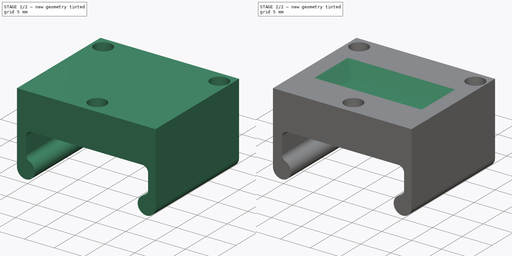
[diagram: build sequence overview — one tinted view per stage of 2, left to right]
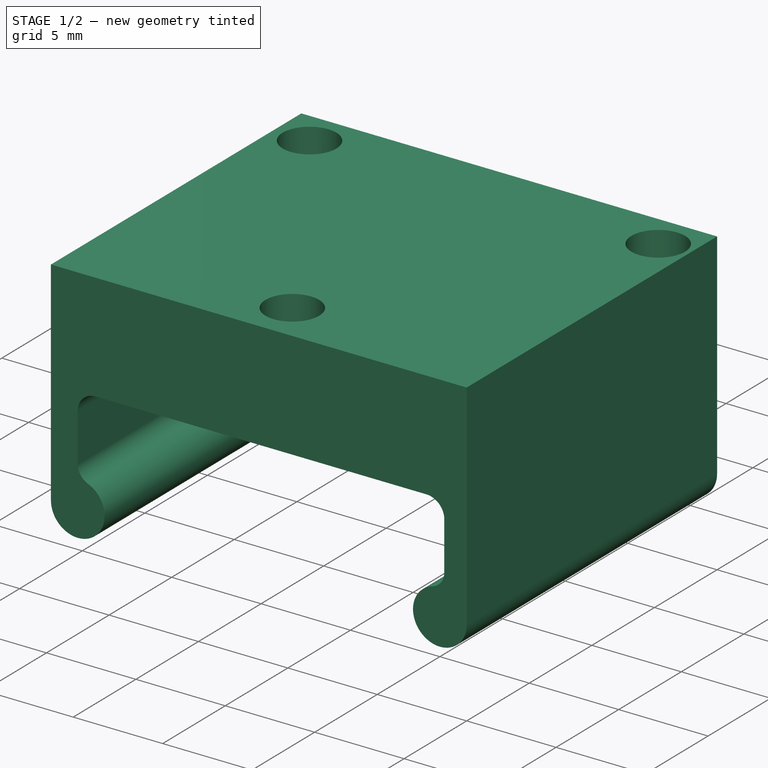
[diagram: stage 1 of 2 — iso view after this stage's code; geometry added in this stage tinted green]
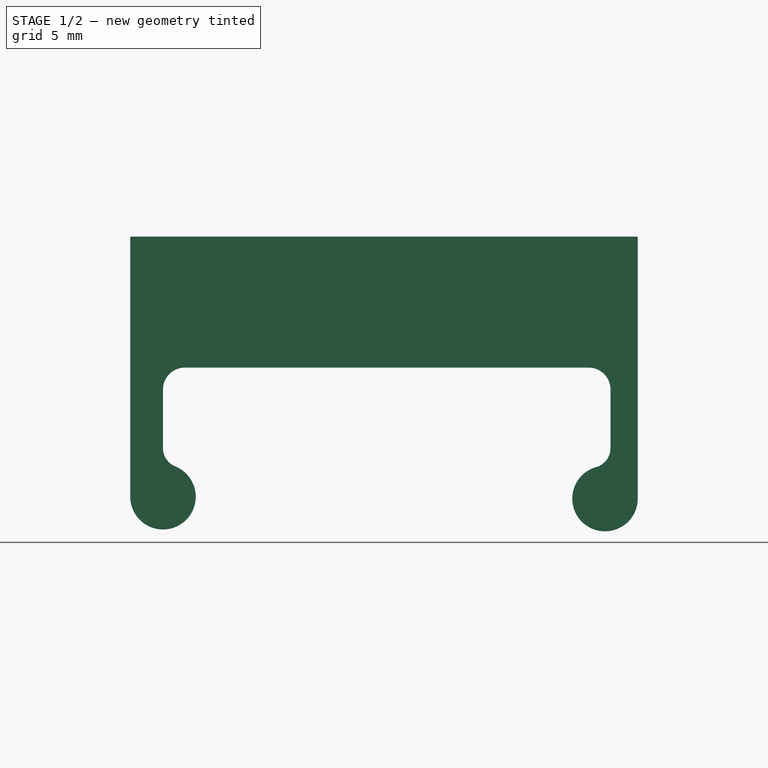
[diagram: stage 1 of 2 — front view after this stage's code; geometry added in this stage tinted green]
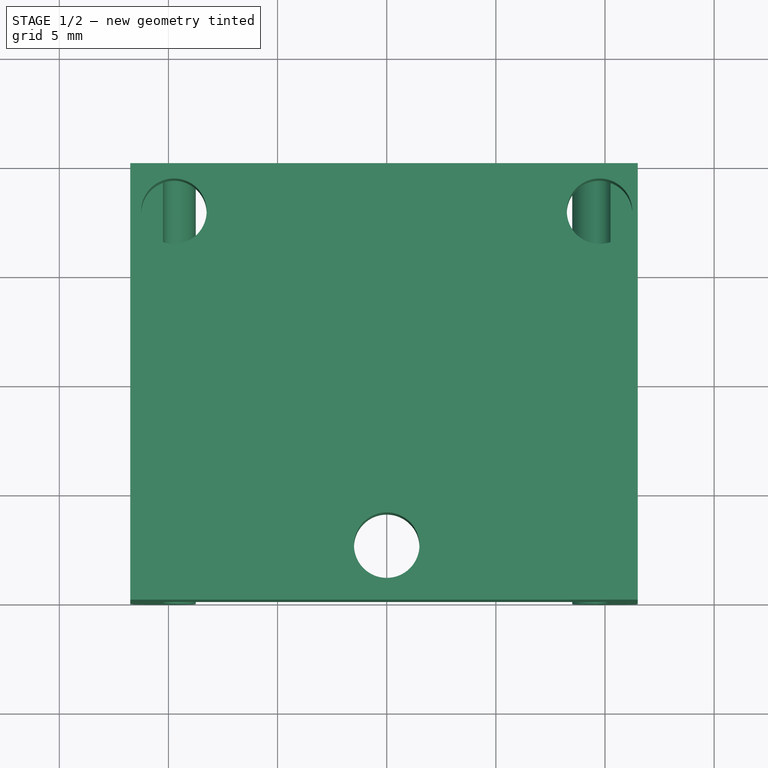
[diagram: stage 1 of 2 — top view after this stage's code; geometry added in this stage tinted green]
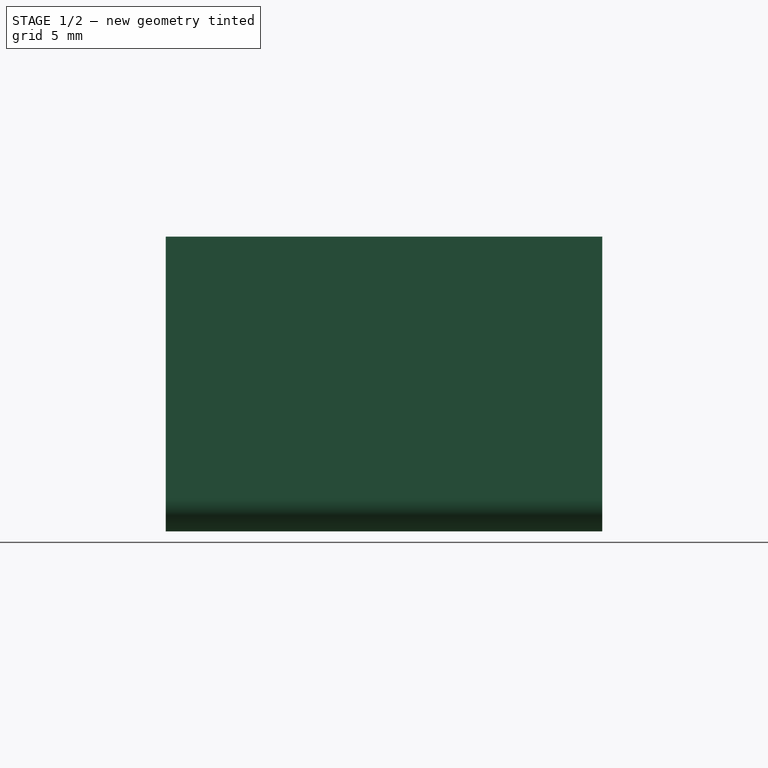
[diagram: stage 1 of 2 — right view after this stage's code; geometry added in this stage tinted green]
FCSTD DOCUMENT  (FreeCAD 0.19R23141 (Git))
Label: cnc_endstop_mount
License: All rights reserved
LicenseURL: http://en.wikipedia.org/wiki/All_rights_reserved
objects: Sketcher::SketchObject×3, PartDesign::Pocket×2, PartDesign::Pad×1, PartDesign::Draft×1, PartDesign::Body×1
note: 12 computed .brp shape members not serialized (recipe doc carries the construction recipe); baked Part::Feature solids carry a one-line shape summary decoded from their .brp

FEATURE [Sketcher::SketchObject] Sketch
  MapMode = 5
  Placement = pos=(0,0,0) rot=(1,0,0;1.5708rad)
  Support = -> [XZ_Plane]
  sketch-geometry (14):
    g0: ArcOfCircle CenterX=-10.25 CenterY=-5.91456 CenterZ=0 NormalX=0 NormalY=0 NormalZ=1 AngleXU=0 Radius=1.5 StartAngle=3.14159 EndAngle=7.46958
    g1: LineSegment StartX=-11.75 StartY=-5.91456 StartZ=0 EndX=-11.75 EndY=6 EndZ=0
    g2: LineSegment StartX=-11.75 StartY=6 StartZ=0 EndX=11.5 EndY=6 EndZ=0
    g3: LineSegment StartX=11.5 StartY=6 StartZ=0 EndX=11.5 EndY=-6 EndZ=0
    g4: ArcOfCircle CenterX=-9.35 CenterY=-3.6897 CenterZ=0 NormalX=0 NormalY=0 NormalZ=1 AngleXU=0 Radius=0.9 StartAngle=3.14159 EndAngle=4.32799
    g5: LineSegment StartX=-10.25 StartY=-3.6897 StartZ=0 EndX=-10.25 EndY=-1 EndZ=0
    g6: LineSegment StartX=-9.25 StartY=0 StartZ=0 EndX=9.25 EndY=0 EndZ=0
    g7: LineSegment StartX=10.25 StartY=-1 StartZ=0 EndX=10.25 EndY=-3.6897 EndZ=0
    g8: ArcOfCircle CenterX=-9.25 CenterY=-1 CenterZ=0 NormalX=0 NormalY=0 NormalZ=1 AngleXU=0 Radius=1 StartAngle=1.5708 EndAngle=3.14159
    g9: ArcOfCircle CenterX=9.25 CenterY=-1 CenterZ=0 NormalX=0 NormalY=0 NormalZ=1 AngleXU=0 Radius=1 StartAngle=0 EndAngle=1.5708
    g10: ArcOfCircle CenterX=9.35 CenterY=-3.6897 CenterZ=0 NormalX=0 NormalY=0 NormalZ=1 AngleXU=0 Radius=0.9 StartAngle=4.98665 EndAngle=6.28319
    g11: ArcOfCircle CenterX=10 CenterY=-6 CenterZ=0 NormalX=0 NormalY=0 NormalZ=1 AngleXU=0 Radius=1.5 StartAngle=1.84505 EndAngle=6.28319
    g12: LineSegment [constr] StartX=-9.35 StartY=-3.6897 StartZ=0 EndX=0 EndY=0 EndZ=0
    g13: LineSegment [constr] StartX=0 StartY=0 StartZ=0 EndX=9.35 EndY=-3.6897 EndZ=0
  constraints (36):
    c: Tangent(g0,g1) = 1.5708
    c: Coincident(g1,g2)
    c: Horizontal(g2)
    c: Coincident(g2,g3)
    c: Vertical(g3)
    c: Vertical(g1)
    c: Tangent(g4,g0) = 1.5708
    c: Tangent(g4,g5) = 1.5708
    c: Horizontal(g6)
    c: Vertical(g7)
    c: Tangent(g5,g8) = 1.5708
    c: Tangent(g6,g8) = 1.5708
    c: Tangent(g6,g9) = 1.5708
    c: Tangent(g7,g9) = 1.5708
    c: Tangent(g11,g10) = 1.5708
    c: Tangent(g11,g3) = 1.5708
    c: Tangent(g10,g7) = 1.5708
    c: Equal(g10,g4)
    c: Equal(g0,g11)
    c: Equal(g8,g9)
    c: Vertical(g5)
    c: Radius(g8) = 1
    c: Radius(g0) = 1.5
    c: DistanceX(g5,g7) = 20.5
    c: DistanceX(g1,g5) = 1.5
    c: DistanceX(g7,g2) = 1.25
    c: Equal(g7,g5)
    c: Coincident(g12,g4)
    c: Coincident(g12,g-1)
    c: Coincident(g12,g13)
    c: Coincident(g13,g10)
    c: Equal(g13,g12)
    c: Radius(g4) = 0.9
    c: PointOnObject(g-1,g6)
    c: DistanceY(g-1,g1) = 6
    c: DistanceY(g11,g-1) = 6
FEATURE [PartDesign::Pad] Pad
  Direction = (1,1,1)
  Length = 20
  Length2 = 100
  Placement = pos=(0,0,0) rot=(1,0,0;1.5708rad)
  Profile = -> Sketch
  Type = 0
FEATURE [Sketcher::SketchObject] Sketch001
  MapMode = 5
  Placement = pos=(0,4e-15,6) rot=(0,0,1;3.14159rad)
  Support = -> [Pad]
  sketch-geometry (5):
    g0: LineSegment [constr] StartX=9.75 StartY=2.2 StartZ=0 EndX=0 EndY=2.2 EndZ=0
    g1: LineSegment [constr] StartX=0 StartY=2.2 StartZ=0 EndX=-9.75 EndY=2.2 EndZ=0
    g2: Circle CenterX=-9.75 CenterY=2.2 CenterZ=0 NormalX=0 NormalY=0 NormalZ=1 AngleXU=0 Radius=1.5
    g3: Circle CenterX=9.75 CenterY=2.2 CenterZ=0 NormalX=0 NormalY=0 NormalZ=1 AngleXU=0 Radius=1.5
    g4: Circle CenterX=0 CenterY=17.5 CenterZ=0 NormalX=0 NormalY=0 NormalZ=1 AngleXU=0 Radius=1.5
  constraints (14):
    c: PointOnObject(g0,g-2)
    c: Horizontal(g0)
    c: Coincident(g1,g0)
    c: Horizontal(g1)
    c: Equal(g1,g0)
    c: DistanceX(g1,g0) = 19.5
    c: DistanceY(g-1,g1) = 2.2
    c: Coincident(g2,g1)
    c: Coincident(g3,g0)
    c: Diameter(g3) = 3
    c: Equal(g3,g2)
    c: PointOnObject(g4,g-2)
    c: DistanceY(g-1,g4) = 17.5
    c: Diameter(g4) = 3
FEATURE [PartDesign::Pocket] Pocket
  BaseFeature = -> Pad
  Length = 7
  Length2 = 100
  Placement = pos=(0,0,0) rot=(1,0,0;1.5708rad)
  Profile = -> Sketch001
  Type = 0
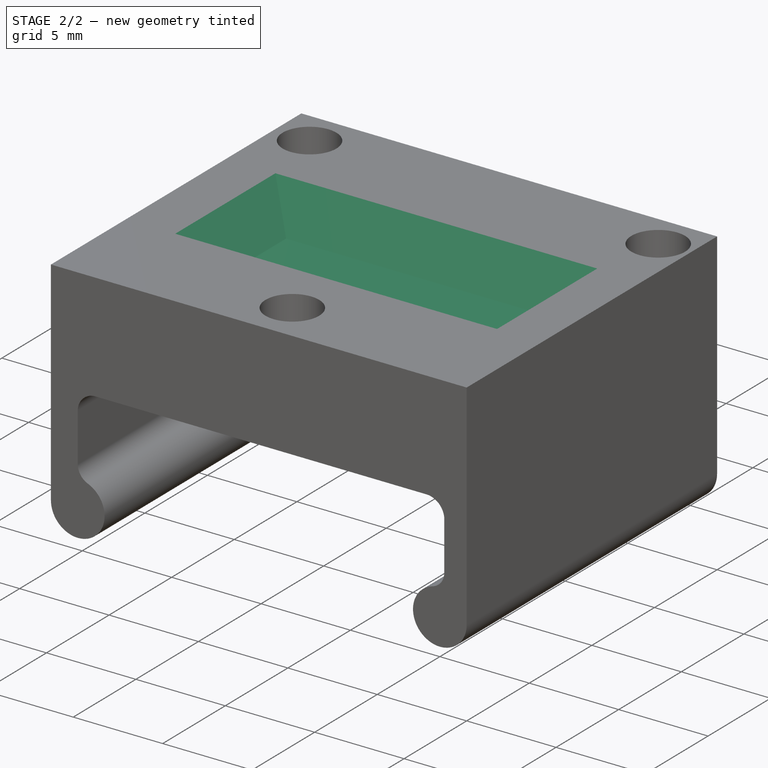
[diagram: stage 2 of 2 — iso view after this stage's code; geometry added in this stage tinted green]
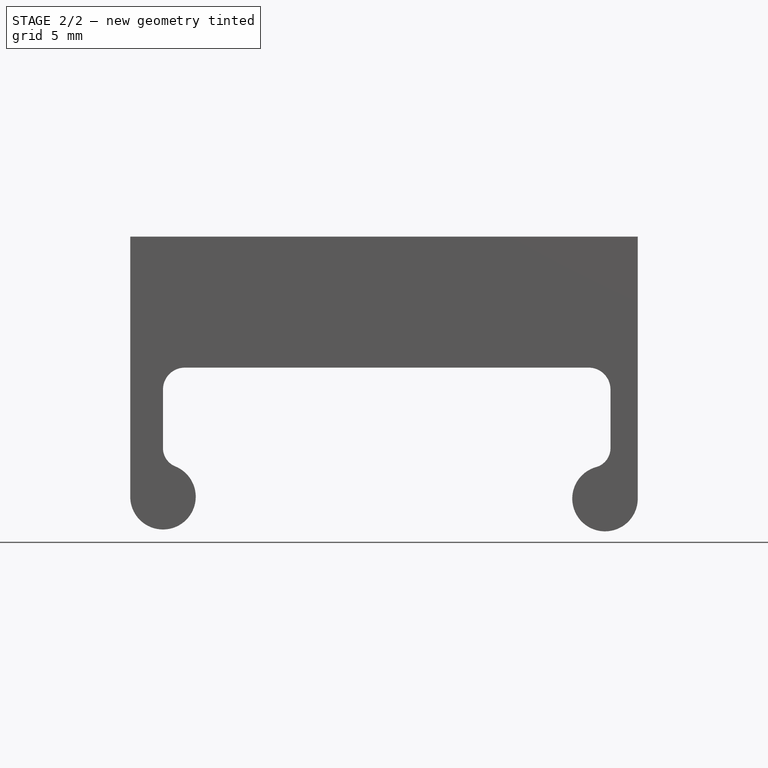
[diagram: stage 2 of 2 — front view after this stage's code; geometry added in this stage tinted green]
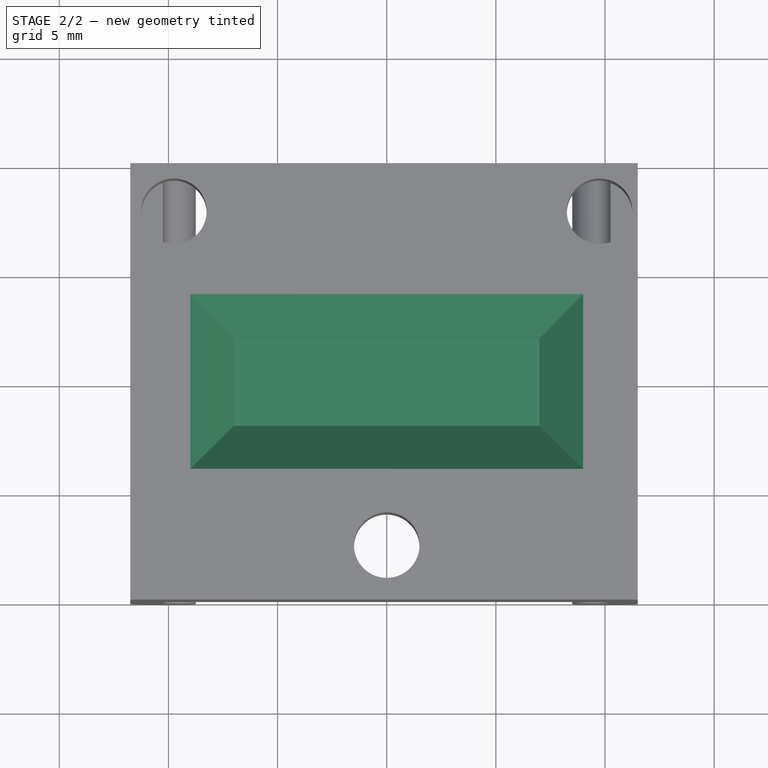
[diagram: stage 2 of 2 — top view after this stage's code; geometry added in this stage tinted green]
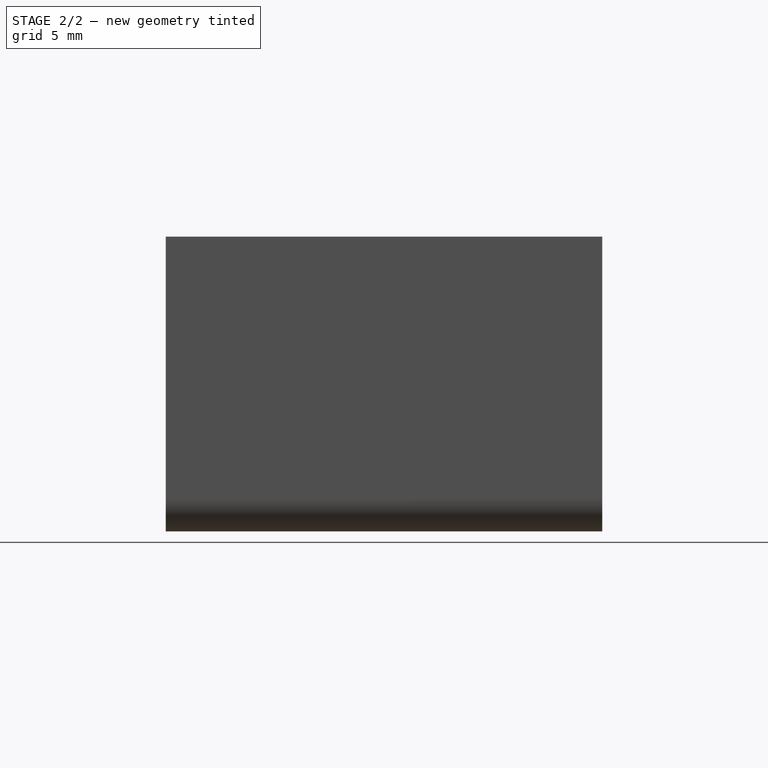
[diagram: stage 2 of 2 — right view after this stage's code; geometry added in this stage tinted green]
FEATURE [Sketcher::SketchObject] Sketch002
  MapMode = 5
  Placement = pos=(0,6.7e-15,6) rot=(0,0,1;3.14159rad)
  Support = -> [Pocket]
  sketch-geometry (7):
    g0: LineSegment StartX=-7 StartY=12 StartZ=0 EndX=7 EndY=12 EndZ=0
    g1: LineSegment StartX=7 StartY=12 StartZ=0 EndX=7 EndY=8 EndZ=0
    g2: LineSegment StartX=7 StartY=8 StartZ=0 EndX=-7 EndY=8 EndZ=0
    g3: LineSegment StartX=-7 StartY=8 StartZ=0 EndX=-7 EndY=12 EndZ=0
    g4: LineSegment [constr] StartX=-7 StartY=12 StartZ=0 EndX=0 EndY=10 EndZ=0
    g5: LineSegment [constr] StartX=0 StartY=10 StartZ=0 EndX=7 EndY=12 EndZ=0
    g6: LineSegment [constr] StartX=0 StartY=10 StartZ=0 EndX=-7 EndY=8 EndZ=0
  constraints (19):
    c: Coincident(g0,g1)
    c: Coincident(g1,g2)
    c: Coincident(g2,g3)
    c: Coincident(g3,g0)
    c: Horizontal(g0)
    c: Horizontal(g2)
    c: Vertical(g1)
    c: Vertical(g3)
    c: Coincident(g0,g4)
    c: PointOnObject(g4,g-2)
    c: Coincident(g4,g5)
    c: Coincident(g5,g0)
    c: Coincident(g4,g6)
    c: Coincident(g6,g2)
    c: Equal(g6,g4)
    c: Equal(g4,g5)
    c: DistanceY(g-1,g4) = 10
    c: DistanceY(g1,g1) = 4
    c: DistanceX(g0,g0) = 14
FEATURE [PartDesign::Pocket] Pocket001
  BaseFeature = -> Pocket
  Length = 2
  Length2 = 100
  Placement = pos=(0,0,0) rot=(1,0,0;1.5708rad)
  Profile = -> Sketch002
  Type = 0
FEATURE [PartDesign::Draft] Draft
  Angle = 45
  Base = -> Pocket001 [Face22,Face21,Face19,Face20]
  BaseFeature = -> Pocket001
  NeutralPlane = -> Pocket001 [Face26]
  Placement = pos=(0,0,0) rot=(1,0,0;1.5708rad)
  Reversed = true
  SupportTransform = false
FEATURE [PartDesign::Body] Body
  Group = -> [Sketch,Pad,Sketch001,Pocket,Sketch002,Pocket001,Draft]
  Origin = -> Origin
  Tip = -> Draft
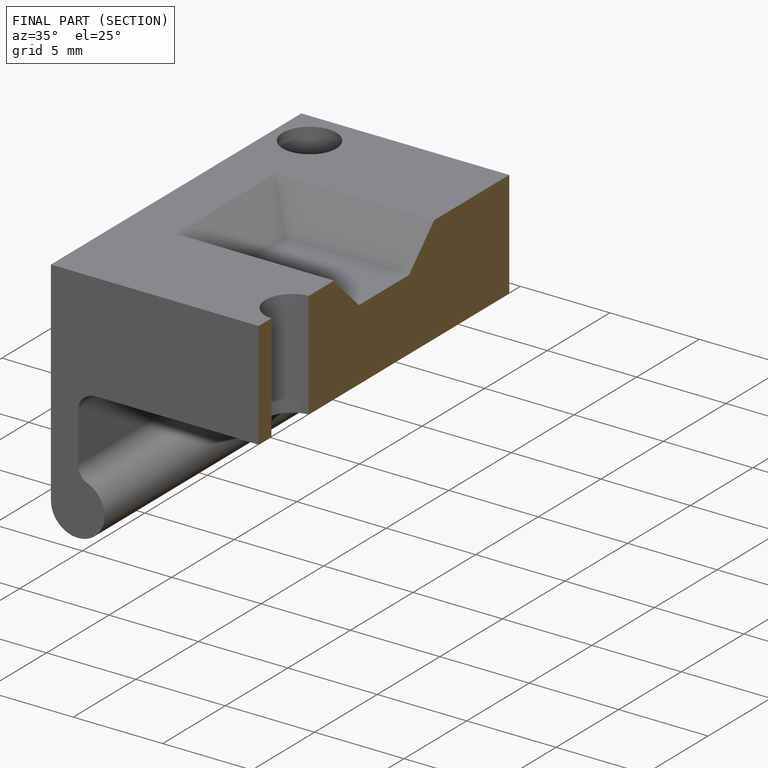
[diagram: finished part — half-section view (interior)]
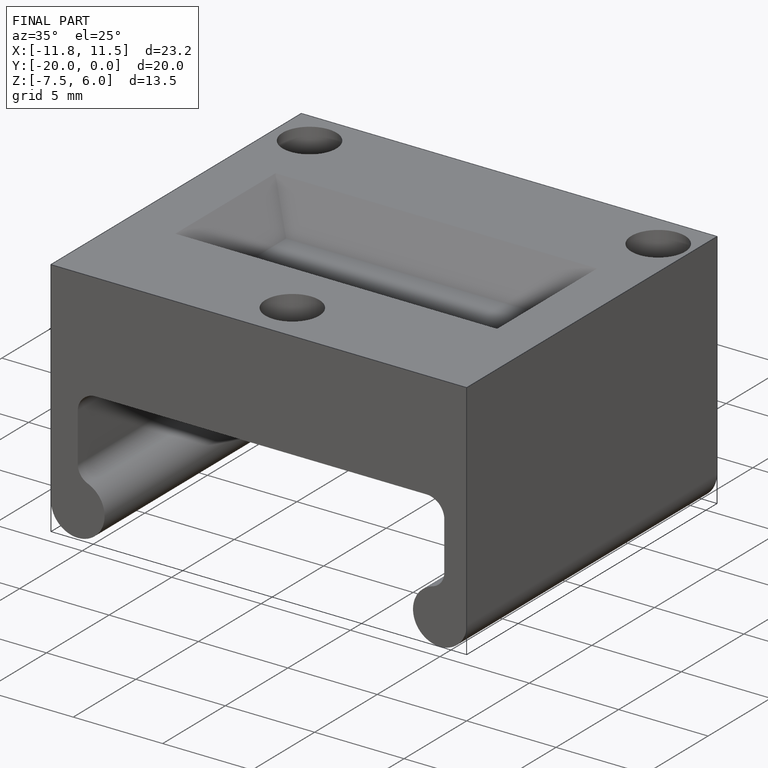
[diagram: finished part — iso view with bounding-box wireframe]
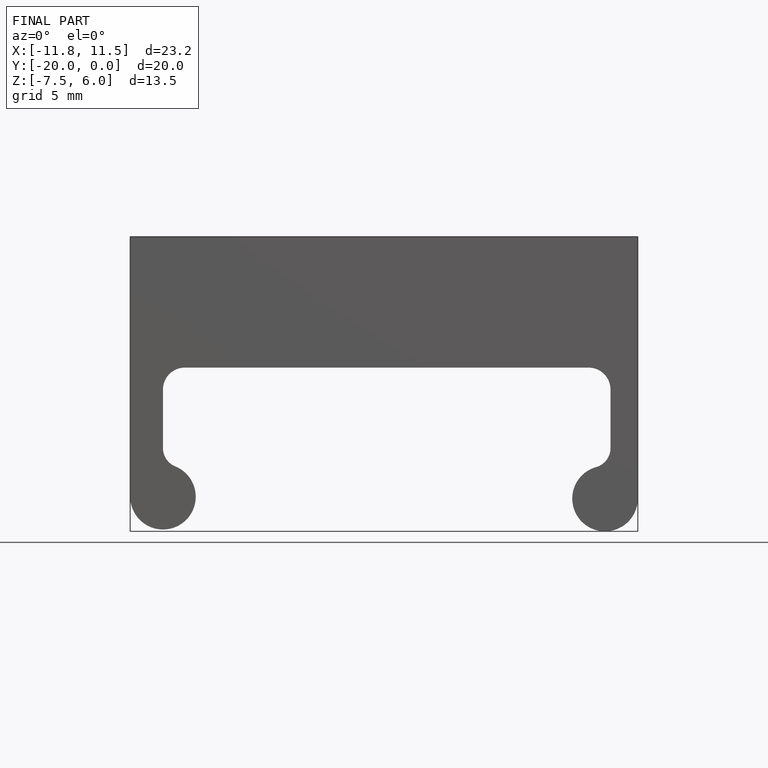
[diagram: finished part — front view with bounding-box wireframe]
